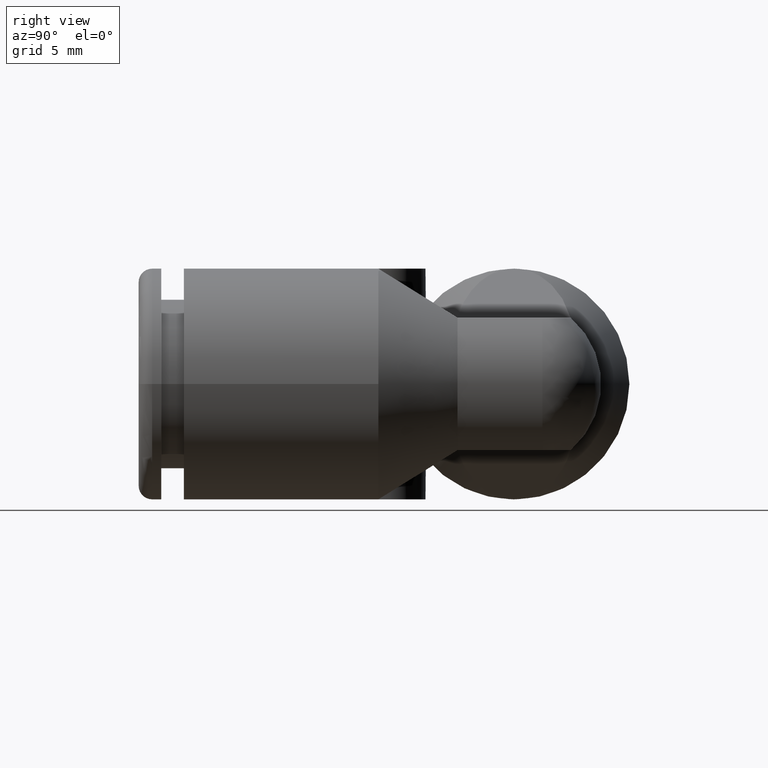
[diagram: clean part render]
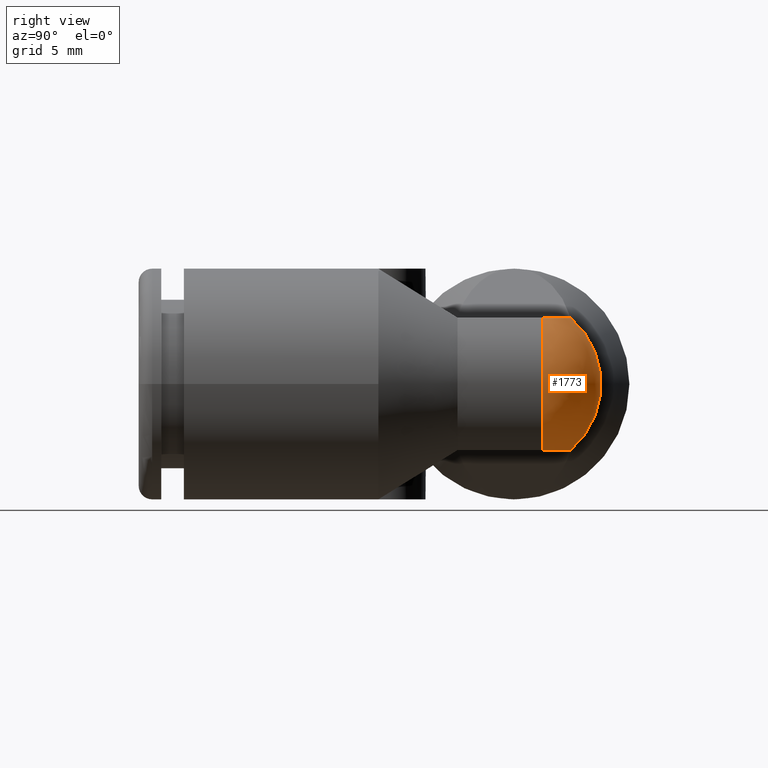
[diagram: same view with one face highlighted and labeled with its STEP entity id]
A machine part, right view. The second image highlights one B-rep face of the part: STEP entity #1773.
In plain terms, the highlighted face is a freeform B-spline surface patch.
Its self-contained STEP definition (entity closure, byte-faithful):
#758=CARTESIAN_POINT('',(6.25E-2,6.25E-2,1.463941597196E-1));
#759=DIRECTION('',(0.E0,0.E0,1.E0));
#760=DIRECTION('',(1.E0,0.E0,0.E0));
#761=AXIS2_PLACEMENT_3D('',#758,#759,#760);
#804=CARTESIAN_POINT('',(6.25E-2,6.25E-2,-1.463941597196E-1));
#805=DIRECTION('',(0.E0,0.E0,1.E0));
#806=DIRECTION('',(1.E0,0.E0,0.E0));
#807=AXIS2_PLACEMENT_3D('',#804,#805,#806);
#842=CARTESIAN_POINT('',(0.E0,6.25E-2,0.E0));
#843=DIRECTION('',(0.E0,-1.E0,0.E0));
#844=DIRECTION('',(6.493506493506E-1,0.E0,-7.604891414004E-1));
#845=AXIS2_PLACEMENT_3D('',#842,#843,#844);
#847=CARTESIAN_POINT('',(6.25E-2,0.E0,0.E0));
#848=DIRECTION('',(1.E0,0.E0,0.E0));
#849=DIRECTION('',(0.E0,6.493506493506E-1,-7.604891414004E-1));
#850=AXIS2_PLACEMENT_3D('',#847,#848,#849);
#984=CARTESIAN_POINT('',(1.25E-1,6.25E-2,-1.463941597196E-1));
#985=CARTESIAN_POINT('',(1.25E-1,6.25E-2,1.463941597196E-1));
#986=VERTEX_POINT('',#984);
#987=VERTEX_POINT('',#985);
#988=CARTESIAN_POINT('',(6.25E-2,1.25E-1,-1.463941597196E-1));
#989=CARTESIAN_POINT('',(6.25E-2,1.25E-1,1.463941597196E-1));
#990=VERTEX_POINT('',#988);
#991=VERTEX_POINT('',#989);
#1750=CARTESIAN_POINT('',(1.198382777926E-1,6.069807202762E-2,
-1.506261991254E-1));
#1751=CARTESIAN_POINT('',(2.247680156358E-1,5.740052217030E-2,
-6.708310555301E-2));
#1752=CARTESIAN_POINT('',(2.247680156358E-1,5.740052217030E-2,
6.708310555301E-2));
#1753=CARTESIAN_POINT('',(1.198382777926E-1,6.069807202762E-2,
1.506261991254E-1));
#1754=CARTESIAN_POINT('',(1.209471817393E-1,9.598396775267E-2,
-1.506261991254E-1));
#1755=CARTESIAN_POINT('',(2.279062271392E-1,1.572600313788E-1,
-6.708310555301E-2));
#1756=CARTESIAN_POINT('',(2.279062271392E-1,1.572600313788E-1,
6.708310555301E-2));
#1757=CARTESIAN_POINT('',(1.209471817393E-1,9.598396775267E-2,
1.506261991254E-1));
#1758=CARTESIAN_POINT('',(9.598396775267E-2,1.209471817393E-1,
-1.506261991254E-1));
#1759=CARTESIAN_POINT('',(1.572600313788E-1,2.279062271392E-1,
-6.708310555301E-2));
#1760=CARTESIAN_POINT('',(1.572600313788E-1,2.279062271392E-1,
6.708310555301E-2));
#1761=CARTESIAN_POINT('',(9.598396775267E-2,1.209471817393E-1,
1.506261991254E-1));
#1762=CARTESIAN_POINT('',(6.069807202762E-2,1.198382777926E-1,
-1.506261991254E-1));
#1763=CARTESIAN_POINT('',(5.740052217030E-2,2.247680156358E-1,
-6.708310555301E-2));
#1764=CARTESIAN_POINT('',(5.740052217030E-2,2.247680156358E-1,
6.708310555301E-2));
#1765=CARTESIAN_POINT('',(6.069807202762E-2,1.198382777926E-1,
1.506261991254E-1));
#1766=(BOUNDED_SURFACE()B_SPLINE_SURFACE(3,3,((#1750,#1751,#1752,#1753),(#1754,
#1755,#1756,#1757),(#1758,#1759,#1760,#1761),(#1762,#1763,#1764,#1765)),
.UNSPECIFIED.,.F.,.F.,.F.)B_SPLINE_SURFACE_WITH_KNOTS((4,4),(4,4),(0.E0,1.E0),(
0.E0,1.E0),.UNSPECIFIED.)GEOMETRIC_REPRESENTATION_ITEM()RATIONAL_B_SPLINE_SURFACE(((1.463332425240E0,1.095239501579E0,1.095239501579E0,1.463332425240E0),(
1.155590792886E0,8.649085212628E-1,8.649085212628E-1,1.155590792886E0),(
1.155590792886E0,8.649085212628E-1,8.649085212628E-1,1.155590792886E0),(
1.463332425240E0,1.095239501579E0,1.095239501579E0,1.463332425240E0)))REPRESENTATION_ITEM('')SURFACE());
#1767=ORIENTED_EDGE('',*,*,#1744,.T.);
#1768=ORIENTED_EDGE('',*,*,#1677,.T.);
#1769=ORIENTED_EDGE('',*,*,#1703,.F.);
#1770=ORIENTED_EDGE('',*,*,#1718,.F.);
#1771=EDGE_LOOP('',(#1767,#1768,#1769,#1770));
#1772=FACE_OUTER_BOUND('',#1771,.F.);
#1773=ADVANCED_FACE('',(#1772),#1766,.T.);
#762=CIRCLE('',#761,6.25E-2);
#808=CIRCLE('',#807,6.25E-2);
#846=CIRCLE('',#845,1.925E-1);
#851=CIRCLE('',#850,1.925E-1);
#1677=EDGE_CURVE('',#987,#991,#762,.T.);
#1703=EDGE_CURVE('',#990,#991,#851,.T.);
#1718=EDGE_CURVE('',#986,#990,#808,.T.);
#1744=EDGE_CURVE('',#986,#987,#846,.T.);